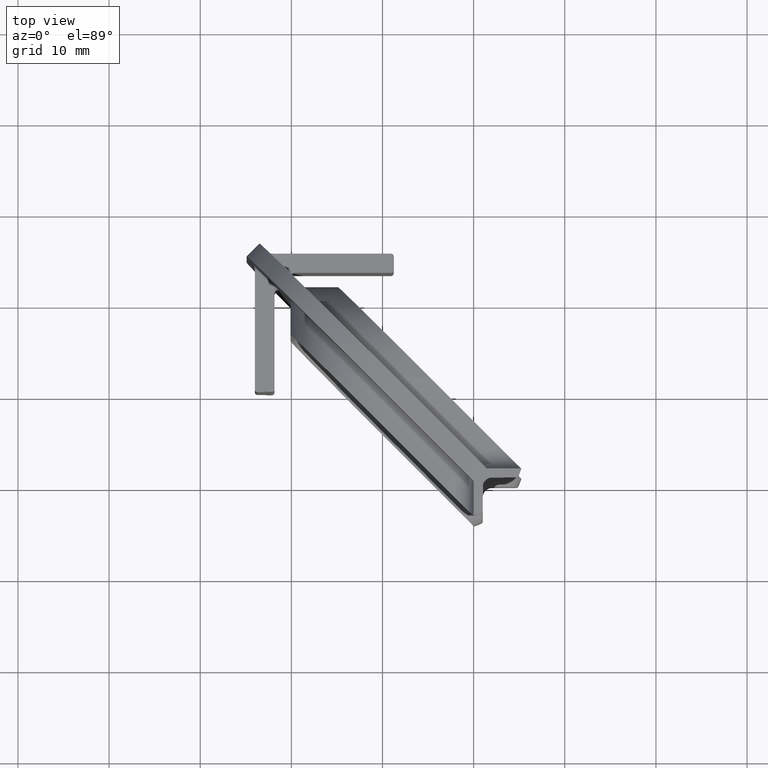
[diagram: clean part render]
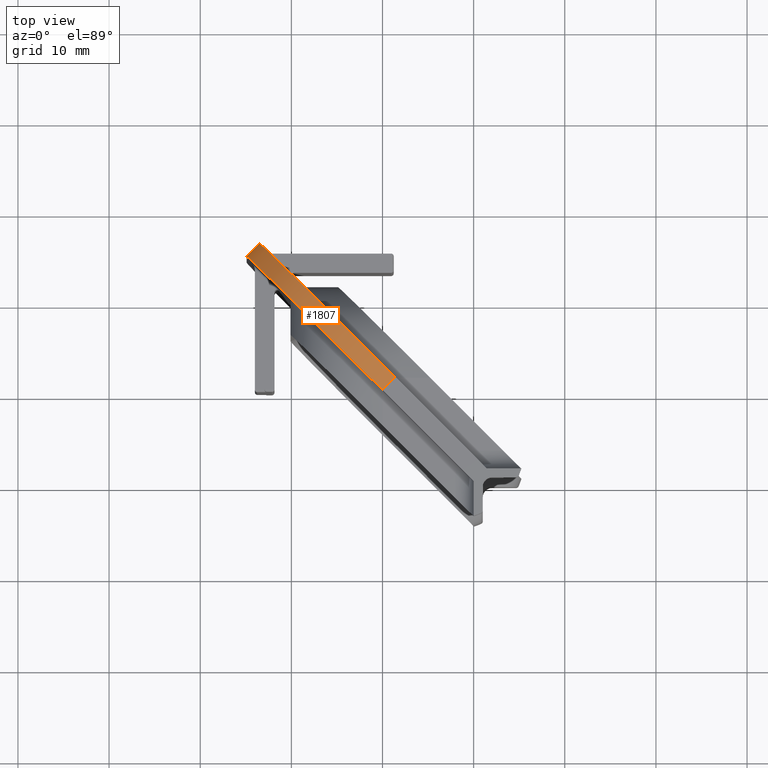
[diagram: same view with one face highlighted and labeled with its STEP entity id]
A machine part, top view. The second image highlights one B-rep face of the part: STEP entity #1807.
In plain terms, the highlighted face is a freeform B-spline surface patch.
Its self-contained STEP definition (entity closure, byte-faithful):
#18=(
BOUNDED_SURFACE()
B_SPLINE_SURFACE(1,2,((#3404,#3405,#3406),(#3407,#3408,#3409)),
 .UNSPECIFIED.,.F.,.F.,.F.)
B_SPLINE_SURFACE_WITH_KNOTS((2,2),(3,3),(-0.0948923651608291,2.08166817117217E-16),
(-1.5707963267949,-2.1425174230802E-16),.UNSPECIFIED.)
GEOMETRIC_REPRESENTATION_ITEM()
RATIONAL_B_SPLINE_SURFACE(((1.,0.707106781186547,1.),(1.,0.707106781186547,
1.)))
REPRESENTATION_ITEM('')
SURFACE()
);
#62=ELLIPSE('',#2001,21.0765112304904,14.);
#67=ELLIPSE('',#2006,21.0765112304904,14.);
#234=FACE_OUTER_BOUND('',#342,.T.);
#342=EDGE_LOOP('',(#1543,#1544,#1545,#1546));
#379=LINE('',#2747,#524);
#487=LINE('',#3411,#632);
#524=VECTOR('',#2080,10.);
#632=VECTOR('',#2458,10.);
#720=VERTEX_POINT('',#2744);
#721=VERTEX_POINT('',#2746);
#839=VERTEX_POINT('',#3386);
#847=VERTEX_POINT('',#3410);
#894=EDGE_CURVE('',#721,#720,#379,.T.);
#1081=EDGE_CURVE('',#839,#720,#62,.T.);
#1090=EDGE_CURVE('',#839,#847,#487,.T.);
#1091=EDGE_CURVE('',#721,#847,#67,.T.);
#1543=ORIENTED_EDGE('',*,*,#1081,.F.);
#1544=ORIENTED_EDGE('',*,*,#1090,.T.);
#1545=ORIENTED_EDGE('',*,*,#1091,.F.);
#1546=ORIENTED_EDGE('',*,*,#894,.T.);
#1807=ADVANCED_FACE('',(#234),#18,.F.);
#2001=AXIS2_PLACEMENT_3D('',#3388,#2444,#2445);
#2006=AXIS2_PLACEMENT_3D('',#3412,#2459,#2460);
#2080=DIRECTION('',(0.707106781186547,0.707106781186548,6.07560200800391E-17));
#2444=DIRECTION('center_axis',(0.707106781186547,0.707106781186548,-1.17756934401283E-16));
#2445=DIRECTION('ref_axis',(-0.707106781186548,0.707106781186547,-5.69676743586122E-16));
#2458=DIRECTION('',(-0.707106781186547,-0.707106781186548,1.11022302462516E-16));
#2459=DIRECTION('center_axis',(-0.707106781186547,-0.707106781186548,-3.92523114670944E-17));
#2460=DIRECTION('ref_axis',(-0.707106781186548,0.707106781186547,-5.69676743586122E-16));
#2744=CARTESIAN_POINT('',(11.4142135623731,41.2325901807804,34.));
#2746=CARTESIAN_POINT('',(10.,39.8183766184073,34.));
#2747=CARTESIAN_POINT('',(10.,39.8183766184073,34.));
#3386=CARTESIAN_POINT('',(-3.4891304524611,56.1359341956146,20.));
#3388=CARTESIAN_POINT('Origin',(11.4142135623731,41.2325901807805,20.));
#3404=CARTESIAN_POINT('Ctrl Pts',(11.4142135623731,41.2325901807805,34.));
#3405=CARTESIAN_POINT('Ctrl Pts',(-3.48913045246109,56.1359341956147,34.));
#3406=CARTESIAN_POINT('Ctrl Pts',(-3.48913045246108,56.1359341956146,20.));
#3407=CARTESIAN_POINT('Ctrl Pts',(10.,39.8183766184074,34.));
#3408=CARTESIAN_POINT('Ctrl Pts',(-4.9033440148342,54.7217206332416,34.));
#3409=CARTESIAN_POINT('Ctrl Pts',(-4.90334401483418,54.7217206332415,20.));
#3410=CARTESIAN_POINT('',(-4.90334401483417,54.7217206332415,20.));
#3411=CARTESIAN_POINT('',(-4.19623723364763,55.4288274144281,20.));
#3412=CARTESIAN_POINT('Origin',(10.,39.8183766184074,20.));